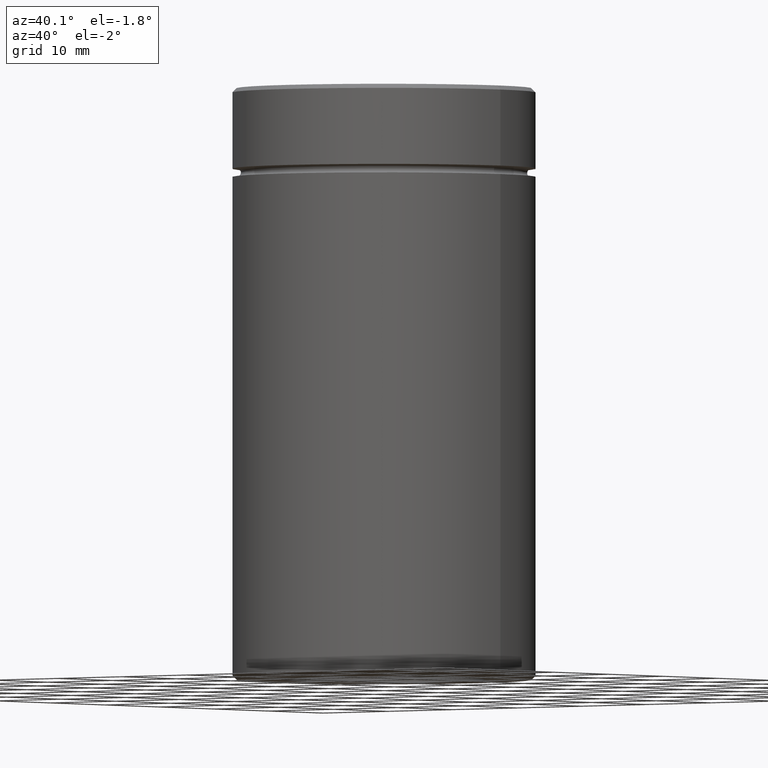
[diagram: clean part render]
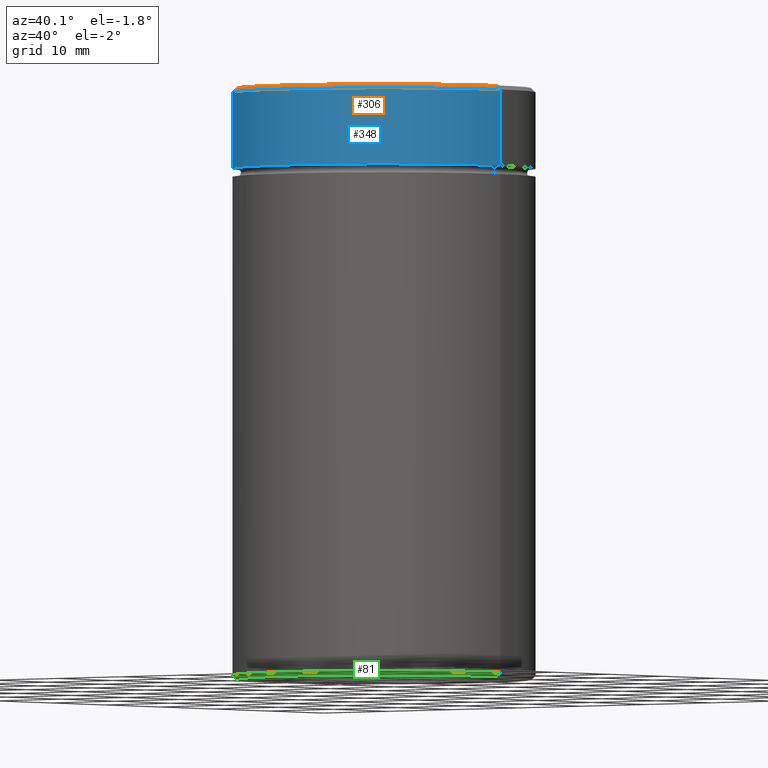
[diagram: same view with three faces highlighted in distinct colors, each labeled with its STEP entity id]
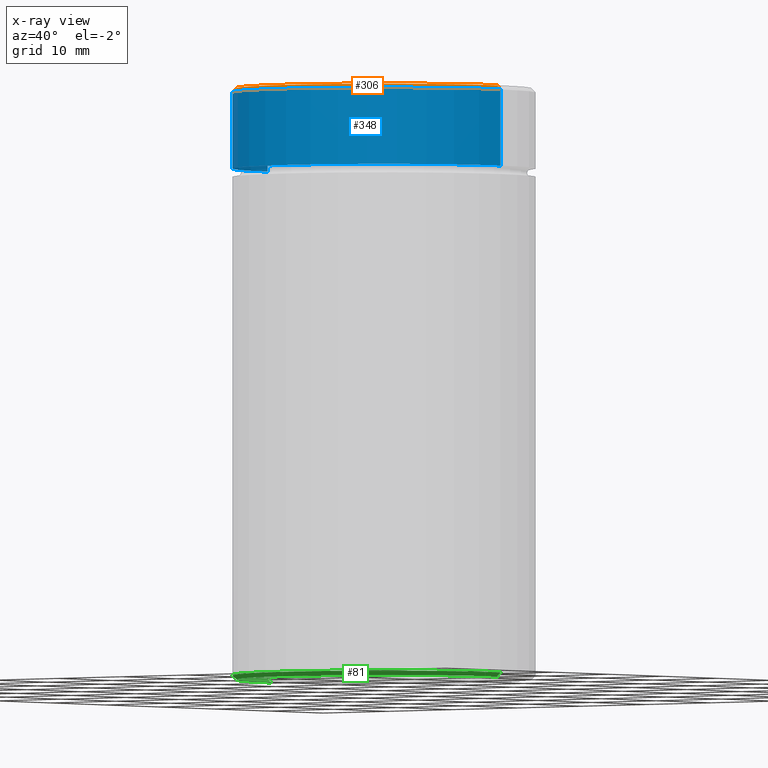
[diagram: x-ray of the same camera — body ghosted, the three highlighted faces saturated]
A machine part, auxiliary view with three faces highlighted in distinct colors.
The next image is the same camera in x-ray (body ghosted, the three faces saturated) — at least one of them is partly hidden behind the body in this view.
Their STEP definitions:

[orange] entity #306 — the highlighted conical surface has half-angle 45 deg.
#12 = CARTESIAN_POINT ( 'NONE',  ( -18.00000000000000000, 2.204364238465235428E-15, -0.5000000000000177636 ) ) ;
#49 = EDGE_LOOP ( 'NONE', ( #324, #404, #240, #439 ) ) ;
#60 = DIRECTION ( 'NONE',  ( -0.000000000000000000, -0.000000000000000000, 1.000000000000000000 ) ) ;
#64 = AXIS2_PLACEMENT_3D ( 'NONE', #239, #284, #418 ) ;
#98 = EDGE_CURVE ( 'NONE', #442, #508, #564, .T. ) ;
#103 = EDGE_CURVE ( 'NONE', #442, #229, #170, .T. ) ;
#112 = FACE_OUTER_BOUND ( 'NONE', #49, .T. ) ;
#125 = AXIS2_PLACEMENT_3D ( 'NONE', #409, #416, #161 ) ;
#130 = DIRECTION ( 'NONE',  ( -0.7071067811865425767, 0.000000000000000000, -0.7071067811865525687 ) ) ;
#161 = DIRECTION ( 'NONE',  ( -1.000000000000000000, 0.000000000000000000, 0.000000000000000000 ) ) ;
#170 = CIRCLE ( 'NONE', #341, 17.49999999999998934 ) ;
#215 = DIRECTION ( 'NONE',  ( 1.000000000000000000, 0.000000000000000000, 0.000000000000000000 ) ) ;
#229 = VERTEX_POINT ( 'NONE', #258 ) ;
#239 = CARTESIAN_POINT ( 'NONE',  ( 0.000000000000000000, 0.000000000000000000, -0.5000000000000177636 ) ) ;
#240 = ORIENTED_EDGE ( 'NONE', *, *, #98, .T. ) ;
#248 = LINE ( 'NONE', #510, #320 ) ;
#258 = CARTESIAN_POINT ( 'NONE',  ( 17.49999999999998934, 2.173748068486550852E-15, 0.000000000000000000 ) ) ;
#263 = CARTESIAN_POINT ( 'NONE',  ( 0.000000000000000000, 0.000000000000000000, 0.000000000000000000 ) ) ;
#269 = EDGE_CURVE ( 'NONE', #229, #484, #248, .T. ) ;
#284 = DIRECTION ( 'NONE',  ( 0.000000000000000000, 0.000000000000000000, -1.000000000000000000 ) ) ;
#287 = CARTESIAN_POINT ( 'NONE',  ( 18.00000000000000000, 0.000000000000000000, -0.5000000000000177636 ) ) ;
#306 = ADVANCED_FACE ( 'NONE', ( #112 ), #454, .T. ) ;
#320 = VECTOR ( 'NONE', #515, 999.9999999999998863 ) ;
#324 = ORIENTED_EDGE ( 'NONE', *, *, #269, .F. ) ;
#338 = CIRCLE ( 'NONE', #64, 18.00000000000000000 ) ;
#341 = AXIS2_PLACEMENT_3D ( 'NONE', #263, #60, #215 ) ;
#404 = ORIENTED_EDGE ( 'NONE', *, *, #103, .F. ) ;
#405 = CARTESIAN_POINT ( 'NONE',  ( -17.49999999999998934, 0.000000000000000000, 0.000000000000000000 ) ) ;
#409 = CARTESIAN_POINT ( 'NONE',  ( 0.000000000000000000, 0.000000000000000000, 0.000000000000000000 ) ) ;
#416 = DIRECTION ( 'NONE',  ( 0.000000000000000000, 0.000000000000000000, -1.000000000000000000 ) ) ;
#418 = DIRECTION ( 'NONE',  ( 1.000000000000000000, 0.000000000000000000, 0.000000000000000000 ) ) ;
#431 = EDGE_CURVE ( 'NONE', #484, #508, #338, .T. ) ;
#439 = ORIENTED_EDGE ( 'NONE', *, *, #431, .F. ) ;
#442 = VERTEX_POINT ( 'NONE', #405 ) ;
#454 = CONICAL_SURFACE ( 'NONE', #125, 17.49999999999998934, 0.7853981633974412846 ) ;
#483 = CARTESIAN_POINT ( 'NONE',  ( -17.49999999999998934, 0.000000000000000000, 0.000000000000000000 ) ) ;
#484 = VERTEX_POINT ( 'NONE', #287 ) ;
#499 = VECTOR ( 'NONE', #130, 999.9999999999998863 ) ;
#508 = VERTEX_POINT ( 'NONE', #12 ) ;
#510 = CARTESIAN_POINT ( 'NONE',  ( 17.49999999999998934, 2.143131898507866276E-15, 0.000000000000000000 ) ) ;
#515 = DIRECTION ( 'NONE',  ( 0.7071067811865425767, 8.659560562354873694E-17, -0.7071067811865525687 ) ) ;
#564 = LINE ( 'NONE', #483, #499 ) ;

[blue] entity #348 — the highlighted cylindrical surface (partial cylindrical patch) has radius 18 mm, axis along (-0, -0, 1).
#12 = CARTESIAN_POINT ( 'NONE',  ( -18.00000000000000000, 2.204364238465235428E-15, -0.5000000000000177636 ) ) ;
#30 = VECTOR ( 'NONE', #158, 1000.000000000000000 ) ;
#37 = CARTESIAN_POINT ( 'NONE',  ( 0.000000000000000000, 0.000000000000000000, -9.500000000000000000 ) ) ;
#48 = CARTESIAN_POINT ( 'NONE',  ( 0.000000000000000000, 0.000000000000000000, 0.000000000000000000 ) ) ;
#50 = DIRECTION ( 'NONE',  ( -0.000000000000000000, -0.000000000000000000, 1.000000000000000000 ) ) ;
#56 = EDGE_LOOP ( 'NONE', ( #435, #273, #495, #145 ) ) ;
#64 = AXIS2_PLACEMENT_3D ( 'NONE', #239, #284, #418 ) ;
#85 = DIRECTION ( 'NONE',  ( -0.000000000000000000, -0.000000000000000000, 1.000000000000000000 ) ) ;
#134 = VERTEX_POINT ( 'NONE', #373 ) ;
#145 = ORIENTED_EDGE ( 'NONE', *, *, #431, .T. ) ;
#158 = DIRECTION ( 'NONE',  ( -0.000000000000000000, -0.000000000000000000, 1.000000000000000000 ) ) ;
#203 = DIRECTION ( 'NONE',  ( 1.000000000000000000, 0.000000000000000000, 0.000000000000000000 ) ) ;
#213 = CYLINDRICAL_SURFACE ( 'NONE', #397, 18.00000000000000000 ) ;
#234 = FACE_OUTER_BOUND ( 'NONE', #56, .T. ) ;
#239 = CARTESIAN_POINT ( 'NONE',  ( 0.000000000000000000, 0.000000000000000000, -0.5000000000000177636 ) ) ;
#273 = ORIENTED_EDGE ( 'NONE', *, *, #353, .T. ) ;
#281 = VECTOR ( 'NONE', #50, 1000.000000000000000 ) ;
#284 = DIRECTION ( 'NONE',  ( 0.000000000000000000, 0.000000000000000000, -1.000000000000000000 ) ) ;
#287 = CARTESIAN_POINT ( 'NONE',  ( 18.00000000000000000, 0.000000000000000000, -0.5000000000000177636 ) ) ;
#292 = AXIS2_PLACEMENT_3D ( 'NONE', #37, #379, #203 ) ;
#300 = CIRCLE ( 'NONE', #292, 18.00000000000000000 ) ;
#338 = CIRCLE ( 'NONE', #64, 18.00000000000000000 ) ;
#348 = ADVANCED_FACE ( 'NONE', ( #234 ), #213, .T. ) ;
#353 = EDGE_CURVE ( 'NONE', #134, #391, #300, .T. ) ;
#363 = EDGE_CURVE ( 'NONE', #134, #508, #562, .T. ) ;
#367 = DIRECTION ( 'NONE',  ( 1.000000000000000000, 0.000000000000000000, 0.000000000000000000 ) ) ;
#373 = CARTESIAN_POINT ( 'NONE',  ( -18.00000000000000000, 2.204364238465235428E-15, -9.500000000000000000 ) ) ;
#375 = CARTESIAN_POINT ( 'NONE',  ( -18.00000000000000000, 2.204364238465235428E-15, 0.000000000000000000 ) ) ;
#379 = DIRECTION ( 'NONE',  ( -0.000000000000000000, -0.000000000000000000, 1.000000000000000000 ) ) ;
#386 = CARTESIAN_POINT ( 'NONE',  ( 18.00000000000000000, 0.000000000000000000, 0.000000000000000000 ) ) ;
#391 = VERTEX_POINT ( 'NONE', #532 ) ;
#397 = AXIS2_PLACEMENT_3D ( 'NONE', #48, #85, #367 ) ;
#418 = DIRECTION ( 'NONE',  ( 1.000000000000000000, 0.000000000000000000, 0.000000000000000000 ) ) ;
#431 = EDGE_CURVE ( 'NONE', #484, #508, #338, .T. ) ;
#432 = LINE ( 'NONE', #386, #281 ) ;
#435 = ORIENTED_EDGE ( 'NONE', *, *, #363, .F. ) ;
#484 = VERTEX_POINT ( 'NONE', #287 ) ;
#495 = ORIENTED_EDGE ( 'NONE', *, *, #540, .T. ) ;
#508 = VERTEX_POINT ( 'NONE', #12 ) ;
#532 = CARTESIAN_POINT ( 'NONE',  ( 18.00000000000000000, 0.000000000000000000, -9.500000000000000000 ) ) ;
#540 = EDGE_CURVE ( 'NONE', #391, #484, #432, .T. ) ;
#562 = LINE ( 'NONE', #375, #30 ) ;

[green] entity #81 — the highlighted conical surface has half-angle 45 deg.
#11 = AXIS2_PLACEMENT_3D ( 'NONE', #305, #148, #180 ) ;
#14 = EDGE_LOOP ( 'NONE', ( #394, #536, #189, #128 ) ) ;
#35 = CONICAL_SURFACE ( 'NONE', #509, 18.00000000000000000, 0.7853981633974587151 ) ;
#47 = FACE_OUTER_BOUND ( 'NONE', #14, .T. ) ;
#81 = ADVANCED_FACE ( 'NONE', ( #47 ), #35, .T. ) ;
#111 = EDGE_CURVE ( 'NONE', #351, #384, #244, .T. ) ;
#128 = ORIENTED_EDGE ( 'NONE', *, *, #259, .F. ) ;
#148 = DIRECTION ( 'NONE',  ( 0.000000000000000000, 0.000000000000000000, -1.000000000000000000 ) ) ;
#151 = DIRECTION ( 'NONE',  ( 0.7071067811865549002, 0.000000000000000000, 0.7071067811865401342 ) ) ;
#175 = VERTEX_POINT ( 'NONE', #374 ) ;
#178 = CARTESIAN_POINT ( 'NONE',  ( 0.000000000000000000, 0.000000000000000000, -69.50000000000001421 ) ) ;
#180 = DIRECTION ( 'NONE',  ( -1.000000000000000000, 0.000000000000000000, 0.000000000000000000 ) ) ;
#183 = VERTEX_POINT ( 'NONE', #277 ) ;
#189 = ORIENTED_EDGE ( 'NONE', *, *, #339, .T. ) ;
#192 = LINE ( 'NONE', #518, #565 ) ;
#244 = CIRCLE ( 'NONE', #11, 17.50000000000000000 ) ;
#245 = DIRECTION ( 'NONE',  ( 1.000000000000000000, 0.000000000000000000, 0.000000000000000000 ) ) ;
#259 = EDGE_CURVE ( 'NONE', #183, #175, #267, .T. ) ;
#261 = VECTOR ( 'NONE', #151, 1000.000000000000000 ) ;
#267 = CIRCLE ( 'NONE', #346, 18.00000000000000000 ) ;
#277 = CARTESIAN_POINT ( 'NONE',  ( -18.00000000000000000, 2.204364238465235428E-15, -69.50000000000001421 ) ) ;
#288 = DIRECTION ( 'NONE',  ( -0.7071067811865549002, 8.659560562355022838E-17, 0.7071067811865401342 ) ) ;
#305 = CARTESIAN_POINT ( 'NONE',  ( 0.000000000000000000, 0.000000000000000000, -70.00000000000000000 ) ) ;
#333 = EDGE_CURVE ( 'NONE', #384, #183, #192, .T. ) ;
#339 = EDGE_CURVE ( 'NONE', #351, #175, #524, .T. ) ;
#346 = AXIS2_PLACEMENT_3D ( 'NONE', #178, #538, #488 ) ;
#351 = VERTEX_POINT ( 'NONE', #480 ) ;
#374 = CARTESIAN_POINT ( 'NONE',  ( 18.00000000000000000, 0.000000000000000000, -69.50000000000001421 ) ) ;
#384 = VERTEX_POINT ( 'NONE', #466 ) ;
#394 = ORIENTED_EDGE ( 'NONE', *, *, #333, .F. ) ;
#419 = DIRECTION ( 'NONE',  ( -0.000000000000000000, -0.000000000000000000, 1.000000000000000000 ) ) ;
#466 = CARTESIAN_POINT ( 'NONE',  ( -17.50000000000000000, 2.173748068486551641E-15, -70.00000000000000000 ) ) ;
#477 = CARTESIAN_POINT ( 'NONE',  ( 0.000000000000000000, 0.000000000000000000, -69.50000000000001421 ) ) ;
#478 = CARTESIAN_POINT ( 'NONE',  ( 18.00000000000000000, 0.000000000000000000, -69.50000000000001421 ) ) ;
#480 = CARTESIAN_POINT ( 'NONE',  ( 17.50000000000000000, 0.000000000000000000, -70.00000000000000000 ) ) ;
#488 = DIRECTION ( 'NONE',  ( -1.000000000000000000, 0.000000000000000000, 0.000000000000000000 ) ) ;
#509 = AXIS2_PLACEMENT_3D ( 'NONE', #477, #419, #245 ) ;
#518 = CARTESIAN_POINT ( 'NONE',  ( -18.00000000000000000, 2.204364238465235428E-15, -69.50000000000001421 ) ) ;
#524 = LINE ( 'NONE', #478, #261 ) ;
#536 = ORIENTED_EDGE ( 'NONE', *, *, #111, .F. ) ;
#538 = DIRECTION ( 'NONE',  ( -0.000000000000000000, -0.000000000000000000, 1.000000000000000000 ) ) ;
#565 = VECTOR ( 'NONE', #288, 1000.000000000000000 ) ;